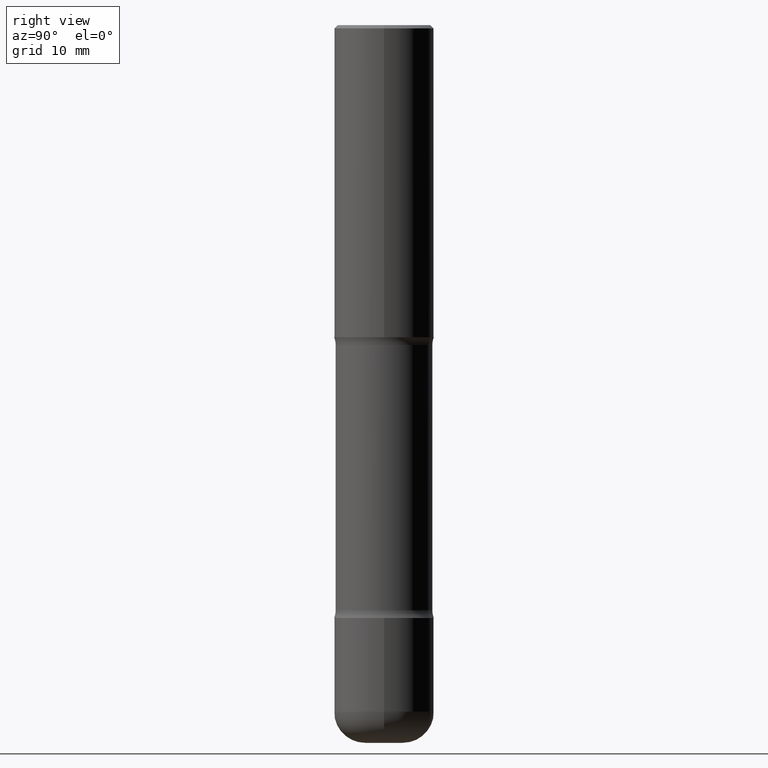
[diagram: clean part render]
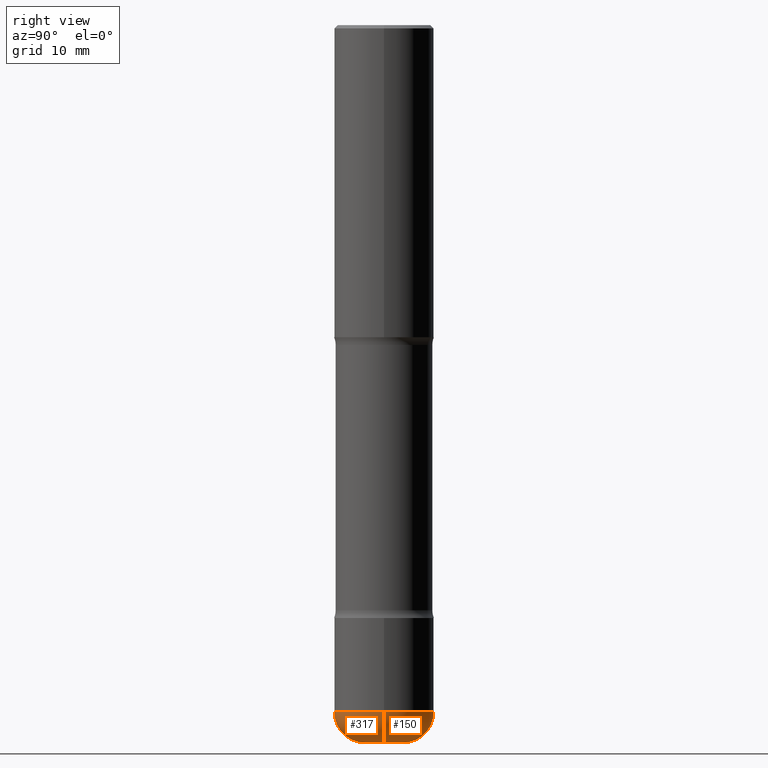
[diagram: same view with one multi-face feature highlighted, each face labeled with its STEP entity id]
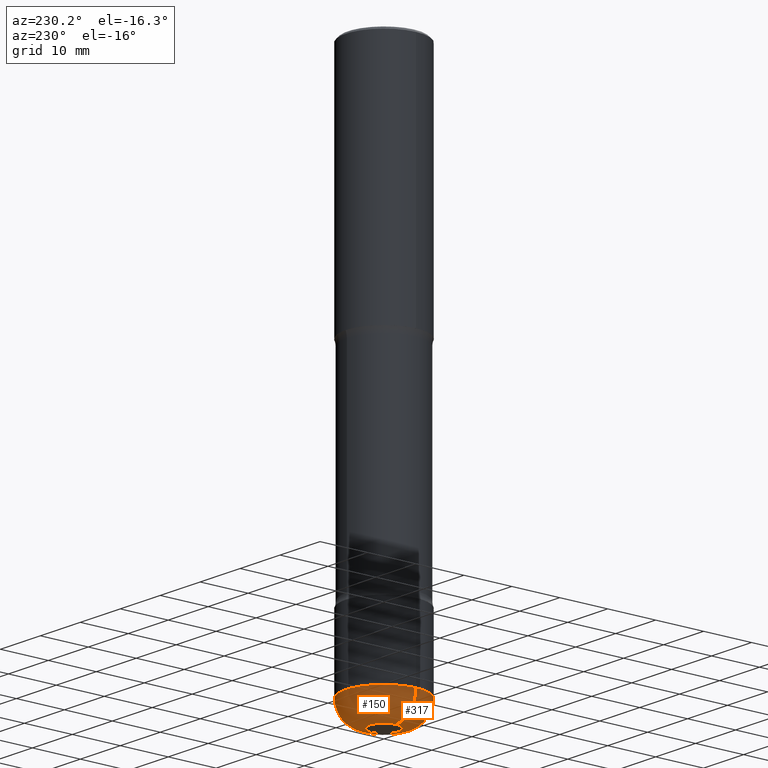
[diagram: same view with one multi-face feature highlighted, each face labeled with its STEP entity id]
A machine part, right view. The highlighted faces form ONE feature: a constant-radius fillet chain: 2 tangent blend faces with common blend radius 5.0013 mm. The faces share edges in the B-rep.
A second angle (auxiliary view) of the same feature is appended — it is thin or edge-on in the first view.
Their STEP definitions:
[1] entity #150 (Torus):
#3 = CARTESIAN_POINT ( 'NONE',  ( -0.1180500000000002936, -1.392596954901650053E-14, -4.527600000000000513 ) ) ;
#6 = AXIS2_PLACEMENT_3D ( 'NONE', #396, #95, #315 ) ;
#21 = DIRECTION ( 'NONE',  ( -6.982962677686266711E-15, -1.000000000000000000, 3.491481338843145583E-15 ) ) ;
#24 = CARTESIAN_POINT ( 'NONE',  ( 1.107210456688382522E-28, -1.580803090974622705E-14, -4.527600000000000513 ) ) ;
#31 = CIRCLE ( 'NONE', #105, 0.1180500000000002936 ) ;
#33 = DIRECTION ( 'NONE',  ( 1.000000000000000000, -6.982962677686263555E-15, 0.000000000000000000 ) ) ;
#34 = EDGE_CURVE ( 'NONE', #447, #39, #319, .T. ) ;
#39 = VERTEX_POINT ( 'NONE', #291 ) ;
#44 = ORIENTED_EDGE ( 'NONE', *, *, #387, .T. ) ;
#95 = DIRECTION ( 'NONE',  ( -2.445468806185136597E-29, 3.491481338843145583E-15, 1.000000000000000000 ) ) ;
#105 = AXIS2_PLACEMENT_3D ( 'NONE', #24, #155, #424 ) ;
#115 = DIRECTION ( 'NONE',  ( 1.000000000000000000, -6.982962677686269077E-15, 0.000000000000000000 ) ) ;
#123 = EDGE_LOOP ( 'NONE', ( #44, #267, #176, #477 ) ) ;
#150 = ADVANCED_FACE ( 'NONE', ( #228 ), #336, .T. ) ;
#155 = DIRECTION ( 'NONE',  ( -2.445468806185136597E-29, 3.491481338843145583E-15, 1.000000000000000000 ) ) ;
#161 = EDGE_CURVE ( 'NONE', #214, #347, #498, .T. ) ;
#176 = ORIENTED_EDGE ( 'NONE', *, *, #507, .F. ) ;
#189 = CARTESIAN_POINT ( 'NONE',  ( -0.1180500000000002658, -1.428176253456320999E-14, -4.330700000000000216 ) ) ;
#212 = AXIS2_PLACEMENT_3D ( 'NONE', #189, #448, #264 ) ;
#214 = VERTEX_POINT ( 'NONE', #3 ) ;
#228 = FACE_OUTER_BOUND ( 'NONE', #123, .T. ) ;
#232 = CIRCLE ( 'NONE', #302, 0.3149500000000002853 ) ;
#256 = AXIS2_PLACEMENT_3D ( 'NONE', #265, #21, #115 ) ;
#264 = DIRECTION ( 'NONE',  ( -1.000000000000000000, 7.105427357601006592E-15, 0.000000000000000000 ) ) ;
#265 = CARTESIAN_POINT ( 'NONE',  ( 0.1180500000000002658, -1.594489697822887608E-14, -4.330700000000000216 ) ) ;
#267 = ORIENTED_EDGE ( 'NONE', *, *, #161, .T. ) ;
#291 = CARTESIAN_POINT ( 'NONE',  ( 0.3149500000000003408, -1.731984232946530120E-14, -4.330700000000000216 ) ) ;
#293 = DIRECTION ( 'NONE',  ( -2.445468806185136597E-29, 3.491481338843145583E-15, 1.000000000000000000 ) ) ;
#302 = AXIS2_PLACEMENT_3D ( 'NONE', #400, #293, #33 ) ;
#315 = DIRECTION ( 'NONE',  ( 1.000000000000000000, -6.982962677686266711E-15, 4.883557194083112901E-29 ) ) ;
#319 = CIRCLE ( 'NONE', #256, 0.1969000000000001582 ) ;
#324 = CARTESIAN_POINT ( 'NONE',  ( -0.3149500000000003408, -1.288270388785157219E-14, -4.330700000000000216 ) ) ;
#336 = TOROIDAL_SURFACE ( 'NONE', #6, 0.1180500000000002658, 0.1969000000000001582 ) ;
#347 = VERTEX_POINT ( 'NONE', #324 ) ;
#387 = EDGE_CURVE ( 'NONE', #447, #214, #31, .T. ) ;
#396 = CARTESIAN_POINT ( 'NONE',  ( 1.059059175894597327E-28, -1.512055823412801291E-14, -4.330700000000000216 ) ) ;
#400 = CARTESIAN_POINT ( 'NONE',  ( 1.059059175894597327E-28, -1.512055823412801291E-14, -4.330700000000000216 ) ) ;
#424 = DIRECTION ( 'NONE',  ( 1.000000000000000000, -6.982962677686261189E-15, 0.000000000000000000 ) ) ;
#447 = VERTEX_POINT ( 'NONE', #465 ) ;
#448 = DIRECTION ( 'NONE',  ( 7.105427357601001859E-15, 1.000000000000000000, -3.491481338843145583E-15 ) ) ;
#465 = CARTESIAN_POINT ( 'NONE',  ( 0.1180500000000002936, -1.663236965384709338E-14, -4.527600000000000513 ) ) ;
#477 = ORIENTED_EDGE ( 'NONE', *, *, #34, .F. ) ;
#498 = CIRCLE ( 'NONE', #212, 0.1969000000000001582 ) ;
#507 = EDGE_CURVE ( 'NONE', #39, #347, #232, .T. ) ;
[2] entity #317 (Torus):
#3 = CARTESIAN_POINT ( 'NONE',  ( -0.1180500000000002936, -1.392596954901650053E-14, -4.527600000000000513 ) ) ;
#4 = ORIENTED_EDGE ( 'NONE', *, *, #161, .F. ) ;
#5 = ORIENTED_EDGE ( 'NONE', *, *, #34, .T. ) ;
#13 = DIRECTION ( 'NONE',  ( -2.445468806185136597E-29, 3.491481338843145583E-15, 1.000000000000000000 ) ) ;
#16 = FACE_OUTER_BOUND ( 'NONE', #219, .T. ) ;
#21 = DIRECTION ( 'NONE',  ( -6.982962677686266711E-15, -1.000000000000000000, 3.491481338843145583E-15 ) ) ;
#34 = EDGE_CURVE ( 'NONE', #447, #39, #319, .T. ) ;
#39 = VERTEX_POINT ( 'NONE', #291 ) ;
#69 = DIRECTION ( 'NONE',  ( 1.000000000000000000, -6.982962677686266711E-15, 4.883557194083112901E-29 ) ) ;
#108 = DIRECTION ( 'NONE',  ( -2.445468806185136597E-29, 3.491481338843145583E-15, 1.000000000000000000 ) ) ;
#115 = DIRECTION ( 'NONE',  ( 1.000000000000000000, -6.982962677686269077E-15, 0.000000000000000000 ) ) ;
#161 = EDGE_CURVE ( 'NONE', #214, #347, #498, .T. ) ;
#166 = TOROIDAL_SURFACE ( 'NONE', #404, 0.1180500000000002658, 0.1969000000000001582 ) ;
#189 = CARTESIAN_POINT ( 'NONE',  ( -0.1180500000000002658, -1.428176253456320999E-14, -4.330700000000000216 ) ) ;
#212 = AXIS2_PLACEMENT_3D ( 'NONE', #189, #448, #264 ) ;
#214 = VERTEX_POINT ( 'NONE', #3 ) ;
#219 = EDGE_LOOP ( 'NONE', ( #4, #522, #5, #441 ) ) ;
#249 = EDGE_CURVE ( 'NONE', #347, #39, #269, .T. ) ;
#256 = AXIS2_PLACEMENT_3D ( 'NONE', #265, #21, #115 ) ;
#264 = DIRECTION ( 'NONE',  ( -1.000000000000000000, 7.105427357601006592E-15, 0.000000000000000000 ) ) ;
#265 = CARTESIAN_POINT ( 'NONE',  ( 0.1180500000000002658, -1.594489697822887608E-14, -4.330700000000000216 ) ) ;
#269 = CIRCLE ( 'NONE', #384, 0.3149500000000002853 ) ;
#279 = DIRECTION ( 'NONE',  ( -2.445468806185136597E-29, 3.491481338843145583E-15, 1.000000000000000000 ) ) ;
#284 = DIRECTION ( 'NONE',  ( 1.000000000000000000, -6.982962677686261189E-15, 0.000000000000000000 ) ) ;
#287 = CARTESIAN_POINT ( 'NONE',  ( 1.059059175894597327E-28, -1.512055823412801291E-14, -4.330700000000000216 ) ) ;
#291 = CARTESIAN_POINT ( 'NONE',  ( 0.3149500000000003408, -1.731984232946530120E-14, -4.330700000000000216 ) ) ;
#317 = ADVANCED_FACE ( 'NONE', ( #16 ), #166, .T. ) ;
#319 = CIRCLE ( 'NONE', #256, 0.1969000000000001582 ) ;
#320 = CARTESIAN_POINT ( 'NONE',  ( 1.107210456688382522E-28, -1.580803090974622705E-14, -4.527600000000000513 ) ) ;
#324 = CARTESIAN_POINT ( 'NONE',  ( -0.3149500000000003408, -1.288270388785157219E-14, -4.330700000000000216 ) ) ;
#347 = VERTEX_POINT ( 'NONE', #324 ) ;
#367 = DIRECTION ( 'NONE',  ( 1.000000000000000000, -6.982962677686263555E-15, 0.000000000000000000 ) ) ;
#384 = AXIS2_PLACEMENT_3D ( 'NONE', #529, #279, #367 ) ;
#404 = AXIS2_PLACEMENT_3D ( 'NONE', #287, #13, #69 ) ;
#436 = AXIS2_PLACEMENT_3D ( 'NONE', #320, #108, #284 ) ;
#441 = ORIENTED_EDGE ( 'NONE', *, *, #249, .F. ) ;
#447 = VERTEX_POINT ( 'NONE', #465 ) ;
#448 = DIRECTION ( 'NONE',  ( 7.105427357601001859E-15, 1.000000000000000000, -3.491481338843145583E-15 ) ) ;
#465 = CARTESIAN_POINT ( 'NONE',  ( 0.1180500000000002936, -1.663236965384709338E-14, -4.527600000000000513 ) ) ;
#498 = CIRCLE ( 'NONE', #212, 0.1969000000000001582 ) ;
#499 = EDGE_CURVE ( 'NONE', #214, #447, #526, .T. ) ;
#522 = ORIENTED_EDGE ( 'NONE', *, *, #499, .T. ) ;
#526 = CIRCLE ( 'NONE', #436, 0.1180500000000002936 ) ;
#529 = CARTESIAN_POINT ( 'NONE',  ( 1.059059175894597327E-28, -1.512055823412801291E-14, -4.330700000000000216 ) ) ;